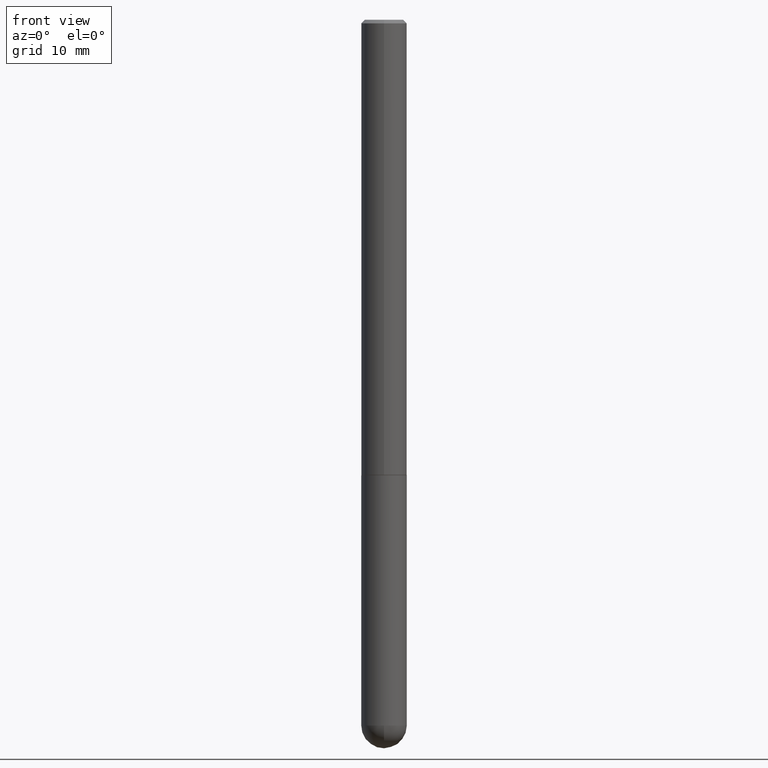
[diagram: clean part render]
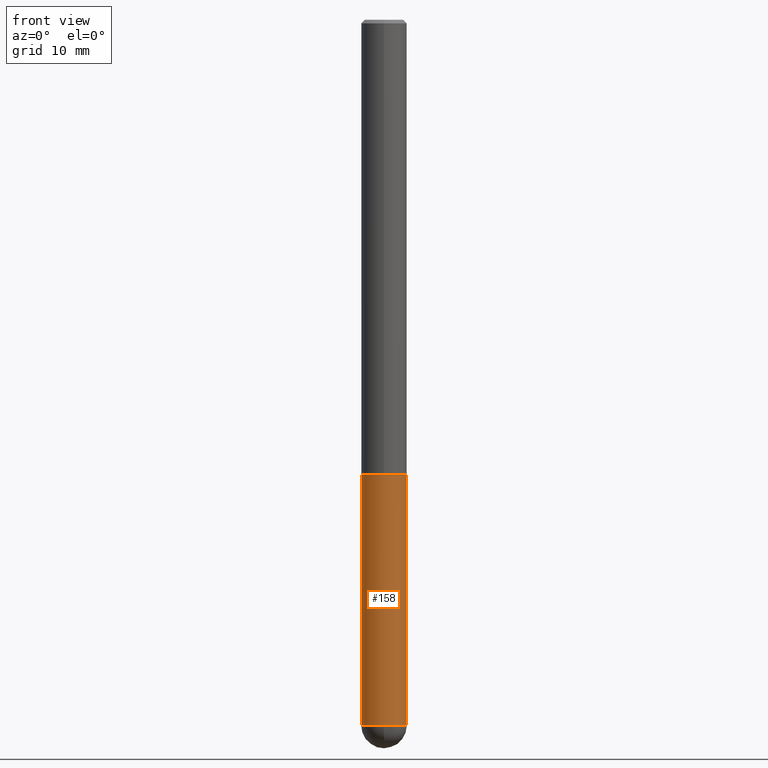
[diagram: same view with one face highlighted and labeled with its STEP entity id]
A machine part, front view. The second image highlights one B-rep face of the part: STEP entity #158.
In plain terms, the highlighted cylindrical surface (edge-blend (fillet) strip) has radius 3.175 mm, axis along (-0, 0, 1).
Its self-contained STEP definition (entity closure, byte-faithful):
#3 = EDGE_CURVE ( 'NONE', #216, #81, #60, .T. ) ;
#13 = CARTESIAN_POINT ( 'NONE',  ( -0.1250000000000000000, -1.024091834786240099E-14, -2.500000000000000000 ) ) ;
#15 = DIRECTION ( 'NONE',  ( 1.000000000000000000, -6.982962677686261189E-15, 0.000000000000000000 ) ) ;
#28 = EDGE_CURVE ( 'NONE', #87, #148, #187, .T. ) ;
#33 = VECTOR ( 'NONE', #315, 39.37007874015748143 ) ;
#46 = CIRCLE ( 'NONE', #260, 0.1250000000000000278 ) ;
#60 = LINE ( 'NONE', #317, #33 ) ;
#79 = CARTESIAN_POINT ( 'NONE',  ( 9.476191623967404313E-29, -1.352949018801718908E-14, -3.875000000000000000 ) ) ;
#81 = VERTEX_POINT ( 'NONE', #13 ) ;
#83 = ORIENTED_EDGE ( 'NONE', *, *, #3, .F. ) ;
#87 = VERTEX_POINT ( 'NONE', #167 ) ;
#89 = CARTESIAN_POINT ( 'NONE',  ( 9.476191623967404313E-29, -1.352949018801718908E-14, -3.875000000000000000 ) ) ;
#99 = CYLINDRICAL_SURFACE ( 'NONE', #142, 0.1250000000000000000 ) ;
#100 = DIRECTION ( 'NONE',  ( 1.000000000000000000, -6.982962677686270655E-15, 0.000000000000000000 ) ) ;
#104 = FACE_OUTER_BOUND ( 'NONE', #140, .T. ) ;
#122 = AXIS2_PLACEMENT_3D ( 'NONE', #325, #270, #100 ) ;
#132 = DIRECTION ( 'NONE',  ( 1.000000000000000000, -6.982962677686266711E-15, 4.876176775795935793E-29 ) ) ;
#136 = DIRECTION ( 'NONE',  ( -2.445468806185136597E-29, 3.491481338843145583E-15, 1.000000000000000000 ) ) ;
#140 = EDGE_LOOP ( 'NONE', ( #83, #349, #310, #279, #306 ) ) ;
#142 = AXIS2_PLACEMENT_3D ( 'NONE', #201, #136, #132 ) ;
#148 = VERTEX_POINT ( 'NONE', #165 ) ;
#149 = DIRECTION ( 'NONE',  ( -2.445468806185136877E-29, 3.491481338843145188E-15, 1.000000000000000000 ) ) ;
#158 = ADVANCED_FACE ( 'NONE', ( #104 ), #99, .T. ) ;
#165 = CARTESIAN_POINT ( 'NONE',  ( 0.1250000000000000000, -9.601573681818648281E-15, -2.500000000000000000 ) ) ;
#167 = CARTESIAN_POINT ( 'NONE',  ( 0.1250000000000000278, -1.200196710227331272E-14, -3.875000000000000000 ) ) ;
#184 = DIRECTION ( 'NONE',  ( -2.445468806185136597E-29, 3.491481338843145583E-15, 1.000000000000000000 ) ) ;
#185 = EDGE_CURVE ( 'NONE', #81, #148, #210, .T. ) ;
#187 = LINE ( 'NONE', #251, #365 ) ;
#201 = CARTESIAN_POINT ( 'NONE',  ( 0.000000000000000000, 0.000000000000000000, 0.000000000000000000 ) ) ;
#208 = CARTESIAN_POINT ( 'NONE',  ( -0.1250000000000000278, -1.024091834786240415E-14, -3.875000000000000000 ) ) ;
#210 = CIRCLE ( 'NONE', #122, 0.1250000000000000000 ) ;
#216 = VERTEX_POINT ( 'NONE', #208 ) ;
#231 = CIRCLE ( 'NONE', #261, 0.1250000000000000278 ) ;
#240 = CARTESIAN_POINT ( 'NONE',  ( -8.881784197000327384E-16, -0.1250000000000138500, -3.874999999999999556 ) ) ;
#251 = CARTESIAN_POINT ( 'NONE',  ( 0.1250000000000000000, -8.728703347107833388E-16, 6.095220969744919741E-30 ) ) ;
#260 = AXIS2_PLACEMENT_3D ( 'NONE', #79, #407, #15 ) ;
#261 = AXIS2_PLACEMENT_3D ( 'NONE', #89, #184, #318 ) ;
#270 = DIRECTION ( 'NONE',  ( -2.445468806185136597E-29, 3.491481338843145583E-15, 1.000000000000000000 ) ) ;
#274 = VERTEX_POINT ( 'NONE', #240 ) ;
#279 = ORIENTED_EDGE ( 'NONE', *, *, #28, .T. ) ;
#288 = EDGE_CURVE ( 'NONE', #274, #87, #46, .T. ) ;
#306 = ORIENTED_EDGE ( 'NONE', *, *, #185, .F. ) ;
#310 = ORIENTED_EDGE ( 'NONE', *, *, #288, .T. ) ;
#315 = DIRECTION ( 'NONE',  ( -2.445468806185136877E-29, 3.491481338843145188E-15, 1.000000000000000000 ) ) ;
#317 = CARTESIAN_POINT ( 'NONE',  ( -0.1250000000000000000, 8.881784197001252323E-16, -6.148668862818632227E-30 ) ) ;
#318 = DIRECTION ( 'NONE',  ( 1.000000000000000000, -6.982962677686261189E-15, 0.000000000000000000 ) ) ;
#325 = CARTESIAN_POINT ( 'NONE',  ( 6.113672015462842613E-29, -8.728703347107864943E-15, -2.500000000000000000 ) ) ;
#332 = EDGE_CURVE ( 'NONE', #216, #274, #231, .T. ) ;
#349 = ORIENTED_EDGE ( 'NONE', *, *, #332, .T. ) ;
#365 = VECTOR ( 'NONE', #149, 39.37007874015748143 ) ;
#407 = DIRECTION ( 'NONE',  ( -2.445468806185136597E-29, 3.491481338843145583E-15, 1.000000000000000000 ) ) ;